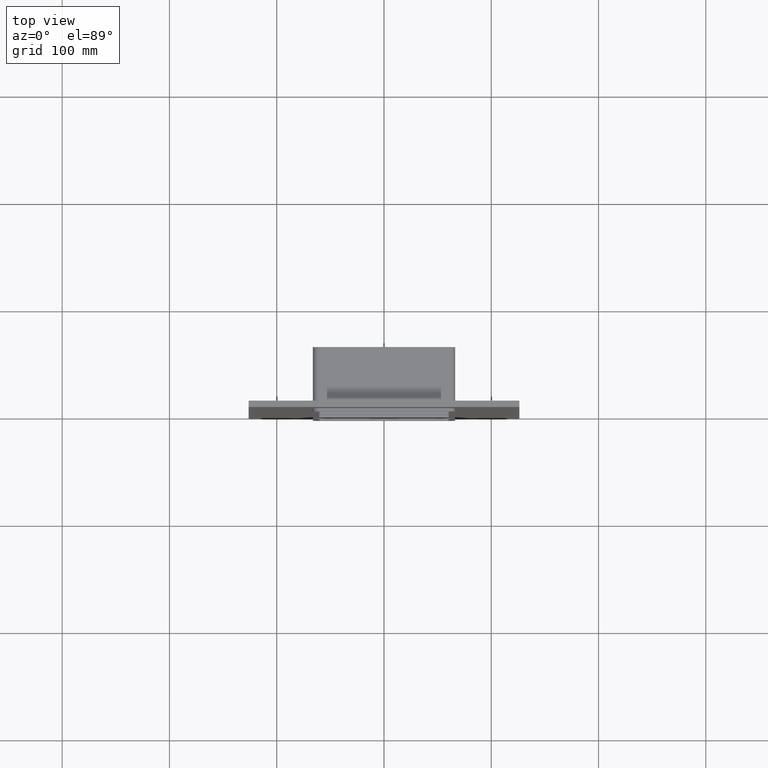
[diagram: clean part render]
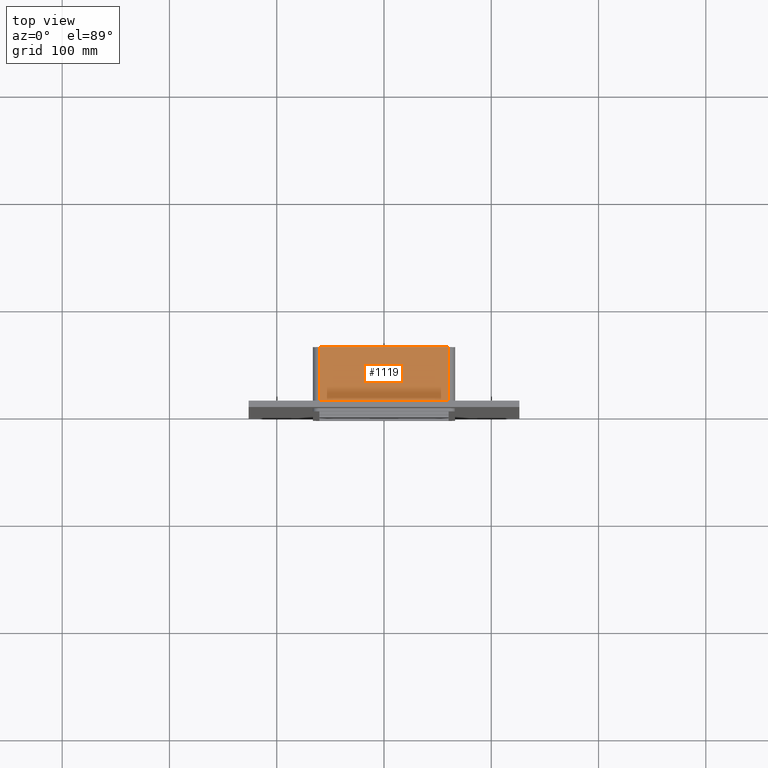
[diagram: same view with one face highlighted and labeled with its STEP entity id]
A machine part, top view. The second image highlights one B-rep face of the part: STEP entity #1119.
In plain terms, the highlighted planar face has unit normal (0, 0, 1).
Its self-contained STEP definition (entity closure, byte-faithful):
#440=CARTESIAN_POINT('',(60.25,6.000000000000001,255.25000000000006));
#441=VERTEX_POINT('',#440);
#449=CARTESIAN_POINT('',(-60.25,6.000000000000001,255.25000000000006));
#450=VERTEX_POINT('',#449);
#451=CARTESIAN_POINT('',(-60.25,6.000000000000001,255.25000000000006));
#452=DIRECTION('',(1.0,0.0,0.0));
#453=VECTOR('',#452,120.5);
#454=LINE('',#451,#453);
#455=EDGE_CURVE('',#450,#441,#454,.T.);
#730=CARTESIAN_POINT('',(60.25,57.0,255.25000000000006));
#731=VERTEX_POINT('',#730);
#739=CARTESIAN_POINT('',(60.25,57.0,255.25000000000006));
#740=DIRECTION('',(0.0,-1.0,0.0));
#741=VECTOR('',#740,51.0);
#742=LINE('',#739,#741);
#743=EDGE_CURVE('',#731,#441,#742,.T.);
#1084=CARTESIAN_POINT('',(-60.25,57.0,255.25000000000006));
#1085=VERTEX_POINT('',#1084);
#1086=CARTESIAN_POINT('',(-60.25,6.000000000000001,255.25000000000006));
#1087=DIRECTION('',(0.0,1.0,0.0));
#1088=VECTOR('',#1087,51.0);
#1089=LINE('',#1086,#1088);
#1090=EDGE_CURVE('',#450,#1085,#1089,.T.);
#1103=CARTESIAN_POINT('',(-66.25,0.0,255.25000000000006));
#1104=DIRECTION('',(0.0,0.0,1.0));
#1105=DIRECTION('',(1.0,0.0,0.0));
#1106=AXIS2_PLACEMENT_3D('',#1103,#1104,#1105);
#1107=PLANE('',#1106);
#1108=ORIENTED_EDGE('',*,*,#455,.T.);
#1109=ORIENTED_EDGE('',*,*,#743,.F.);
#1110=CARTESIAN_POINT('',(-60.25,57.0,255.25000000000006));
#1111=DIRECTION('',(1.0,0.0,0.0));
#1112=VECTOR('',#1111,120.5);
#1113=LINE('',#1110,#1112);
#1114=EDGE_CURVE('',#1085,#731,#1113,.T.);
#1115=ORIENTED_EDGE('',*,*,#1114,.F.);
#1116=ORIENTED_EDGE('',*,*,#1090,.F.);
#1117=EDGE_LOOP('',(#1108,#1109,#1115,#1116));
#1118=FACE_OUTER_BOUND('',#1117,.T.);
#1119=ADVANCED_FACE('',(#1118),#1107,.T.);